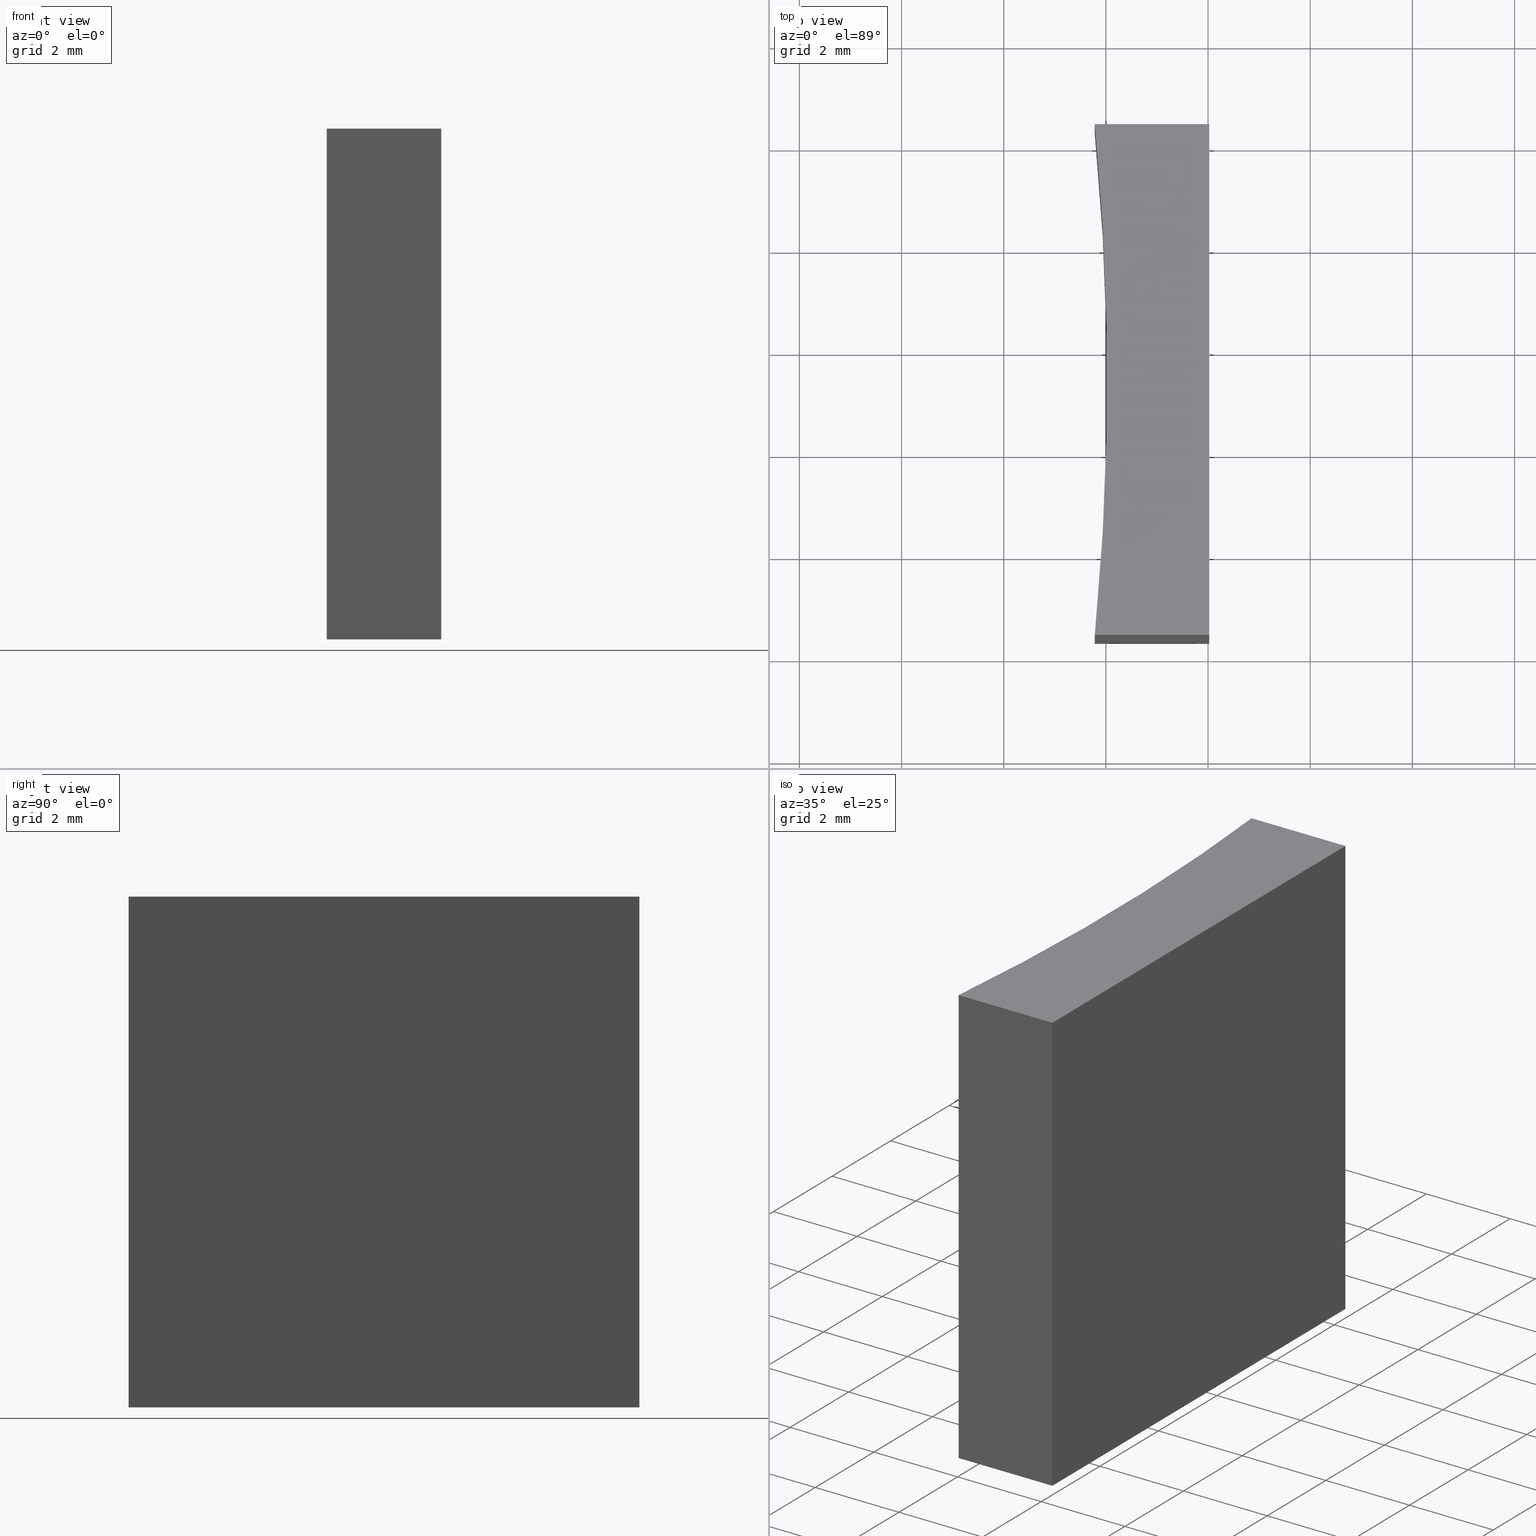
[diagram: canonical four-view strip — front | top / right | iso, engineering-drawing reading convention]
A machine part, canonical four-view strip (front | top / right | iso — engineering-drawing reading convention). The complete STEP part file that produces these views, byte-faithful:
ISO-10303-21;
HEADER;
FILE_DESCRIPTION (( 'STEP AP203' ),
    '1' );
FILE_NAME ('155568.STEP',
    '2024-05-13T05:56:05',
    ( '' ),
    ( '' ),
    'SwSTEP 2.0',
    'SolidWorks 2020',
    '' );
FILE_SCHEMA (( 'CONFIG_CONTROL_DESIGN' ));
ENDSEC;

DATA;
#1 = COORDINATED_UNIVERSAL_TIME_OFFSET ( 8, 0, .AHEAD. ) ;
#2 = VECTOR ( 'NONE', #176, 1000.000000000000000 ) ;
#3 = PERSON_AND_ORGANIZATION_ROLE ( 'creator' ) ;
#4 = CALENDAR_DATE ( 2024, 13, 5 ) ;
#5 = FACE_OUTER_BOUND ( 'NONE', #201, .T. ) ;
#6 = CARTESIAN_POINT ( 'NONE',  ( 22.02284995870106954, -9.651690268478267498, 10.00000000000000000 ) ) ;
#7 = PERSON ( 'δָ��', 'δָ��', 'δָ��', ('δָ��'), ('δָ��'), ('δָ��') ) ;
#8 = DIRECTION ( 'NONE',  ( 1.000000000000000000, 0.000000000000000000, 0.000000000000000000 ) ) ;
#9 = APPROVAL_PERSON_ORGANIZATION ( #164, #84, #161 ) ;
#10 = FACE_OUTER_BOUND ( 'NONE', #34, .T. ) ;
#11 = CARTESIAN_POINT ( 'NONE',  ( 22.02284995870107309, -19.65169026847826927, 10.00000000000000000 ) ) ;
#12 = CYLINDRICAL_SURFACE ( 'NONE', #218, 51.64000000000000057 ) ;
#13 = AXIS2_PLACEMENT_3D ( 'NONE', #172, #85, #86 ) ;
#14 = ORIENTED_EDGE ( 'NONE', *, *, #165, .F. ) ;
#15 = EDGE_CURVE ( 'NONE', #230, #133, #196, .T. ) ;
#16 = ORIENTED_EDGE ( 'NONE', *, *, #239, .F. ) ;
#17 = APPROVAL_PERSON_ORGANIZATION ( #182, #217, #220 ) ;
#18 = FACE_OUTER_BOUND ( 'NONE', #70, .T. ) ;
#19 = APPLICATION_PROTOCOL_DEFINITION ( 'international standard', 'config_control_design', 1994, #155 ) ;
#20 = CC_DESIGN_DATE_AND_TIME_ASSIGNMENT ( #75, #60, ( #149 ) ) ;
#21 = APPROVAL_DATE_TIME ( #199, #63 ) ;
#22 = LOCAL_TIME ( 13, 56, 5.000000000000000000, #1 ) ;
#23 = AXIS2_PLACEMENT_3D ( 'NONE', #191, #228, #31 ) ;
#24 = PLANE ( 'NONE',  #49 ) ;
#25 = DIRECTION ( 'NONE',  ( 0.000000000000000000, 1.000000000000000000, 0.000000000000000000 ) ) ;
#26 = ADVANCED_FACE ( 'NONE', ( #18 ), #12, .F. ) ;
#27 = VECTOR ( 'NONE', #82, 1000.000000000000000 ) ;
#28 = DIRECTION ( 'NONE',  ( -3.469446951953613696E-16, 1.000000000000000000, -0.000000000000000000 ) ) ;
#29 = CALENDAR_DATE ( 2024, 13, 5 ) ;
#30 = CC_DESIGN_SECURITY_CLASSIFICATION ( #237, ( #108 ) ) ;
#31 = DIRECTION ( 'NONE',  ( 1.000000000000000000, 0.000000000000000000, 0.000000000000000000 ) ) ;
#32 = DIRECTION ( 'NONE',  ( -0.000000000000000000, -0.000000000000000000, -1.000000000000000000 ) ) ;
#33 = CARTESIAN_POINT ( 'NONE',  ( 19.78284995870107466, -9.651690268478269275, 0.000000000000000000 ) ) ;
#34 = EDGE_LOOP ( 'NONE', ( #207, #87, #37, #210 ) ) ;
#35 = EDGE_CURVE ( 'NONE', #140, #215, #98, .T. ) ;
#36 = AXIS2_PLACEMENT_3D ( 'NONE', #169, #137, #213 ) ;
#37 = ORIENTED_EDGE ( 'NONE', *, *, #39, .F. ) ;
#38 = CARTESIAN_POINT ( 'NONE',  ( 19.78284995870107466, -19.65169026847826927, 10.00000000000000000 ) ) ;
#39 = EDGE_CURVE ( 'NONE', #102, #157, #135, .T. ) ;
#40 = ORIENTED_EDGE ( 'NONE', *, *, #99, .T. ) ;
#41 = APPROVAL_DATE_TIME ( #76, #84 ) ;
#42 = COORDINATED_UNIVERSAL_TIME_OFFSET ( 8, 0, .AHEAD. ) ;
#43 = PRODUCT ( '155568', '155568', '', ( #141 ) ) ;
#44 = PERSON_AND_ORGANIZATION ( #7, #80 ) ;
#45 = CARTESIAN_POINT ( 'NONE',  ( 19.78284995870107466, -19.65169026847826927, 10.00000000000000000 ) ) ;
#46 = PERSON_AND_ORGANIZATION ( #7, #80 ) ;
#47 = ADVANCED_FACE ( 'NONE', ( #10 ), #71, .F. ) ;
#48 = SHAPE_DEFINITION_REPRESENTATION ( #103, #233 ) ;
#49 = AXIS2_PLACEMENT_3D ( 'NONE', #45, #25, #221 ) ;
#50 = ORIENTED_EDGE ( 'NONE', *, *, #166, .T. ) ;
#51 = LINE ( 'NONE', #64, #178 ) ;
#52 = DIRECTION ( 'NONE',  ( -1.000000000000000000, -7.744301232039333445E-16, -0.000000000000000000 ) ) ;
#53 = CARTESIAN_POINT ( 'NONE',  ( 19.78284995870107466, -9.651690268478269275, 10.00000000000000000 ) ) ;
#54 = AXIS2_PLACEMENT_3D ( 'NONE', #147, #78, #145 ) ;
#55 = DIRECTION ( 'NONE',  ( -0.000000000000000000, -0.000000000000000000, -1.000000000000000000 ) ) ;
#56 = DIRECTION ( 'NONE',  ( 1.000000000000000000, 0.000000000000000000, 0.000000000000000000 ) ) ;
#57 = ORIENTED_EDGE ( 'NONE', *, *, #15, .F. ) ;
#58 = EDGE_LOOP ( 'NONE', ( #194, #104, #14, #235 ) ) ;
#59 = EDGE_LOOP ( 'NONE', ( #50, #73, #105, #120 ) ) ;
#60 = DATE_TIME_ROLE ( 'creation_date' ) ;
#61 = CALENDAR_DATE ( 2024, 13, 5 ) ;
#62 = CC_DESIGN_DATE_AND_TIME_ASSIGNMENT ( #79, #222, ( #237 ) ) ;
#63 = APPROVAL ( #109, 'δָ��' ) ;
#64 = CARTESIAN_POINT ( 'NONE',  ( 22.02284995870106954, -9.651690268478267498, 10.00000000000000000 ) ) ;
#65 = DATE_AND_TIME ( #29, #124 ) ;
#66 = CARTESIAN_POINT ( 'NONE',  ( 19.78284995870107466, -19.65169026847826927, 10.00000000000000000 ) ) ;
#67 = APPLICATION_CONTEXT ( 'configuration controlled 3d designs of mechanical parts and assemblies' ) ;
#68 = CARTESIAN_POINT ( 'NONE',  ( 19.78284995870107466, -9.651690268478269275, 10.00000000000000000 ) ) ;
#69 = LINE ( 'NONE', #68, #156 ) ;
#70 = EDGE_LOOP ( 'NONE', ( #74, #57, #160, #190 ) ) ;
#71 = PLANE ( 'NONE',  #36 ) ;
#72 = VERTEX_POINT ( 'NONE', #117 ) ;
#73 = ORIENTED_EDGE ( 'NONE', *, *, #181, .T. ) ;
#74 = ORIENTED_EDGE ( 'NONE', *, *, #143, .T. ) ;
#75 = DATE_AND_TIME ( #61, #115 ) ;
#76 = DATE_AND_TIME ( #236, #22 ) ;
#77 =( NAMED_UNIT ( * ) SI_UNIT ( $, .STERADIAN. ) SOLID_ANGLE_UNIT ( ) );
#78 = DIRECTION ( 'NONE',  ( 0.000000000000000000, 0.000000000000000000, 1.000000000000000000 ) ) ;
#79 = DATE_AND_TIME ( #4, #88 ) ;
#80 = ORGANIZATION ( 'δָ��', 'δָ��', '' ) ;
#81 = CC_DESIGN_PERSON_AND_ORGANIZATION_ASSIGNMENT ( #148, #111, ( #237 ) ) ;
#82 = DIRECTION ( 'NONE',  ( -0.000000000000000000, -0.000000000000000000, -1.000000000000000000 ) ) ;
#83 = CARTESIAN_POINT ( 'NONE',  ( 19.78284995870107466, -19.65169026847826927, 0.000000000000000000 ) ) ;
#84 = APPROVAL ( #219, 'δָ��' ) ;
#85 = DIRECTION ( 'NONE',  ( 7.744301232039333445E-16, -1.000000000000000000, 0.000000000000000000 ) ) ;
#86 = DIRECTION ( 'NONE',  ( 1.000000000000000000, 7.744301232039333445E-16, 0.000000000000000000 ) ) ;
#87 = ORIENTED_EDGE ( 'NONE', *, *, #121, .F. ) ;
#88 = LOCAL_TIME ( 13, 56, 5.000000000000000000, #167 ) ;
#89 = PERSON_AND_ORGANIZATION_ROLE ( 'creator' ) ;
#90 = DIRECTION ( 'NONE',  ( 0.000000000000000000, 0.000000000000000000, 1.000000000000000000 ) ) ;
#91 = CC_DESIGN_APPROVAL ( #63, ( #149 ) ) ;
#92 = APPROVAL_ROLE ( '' ) ;
#93 = PERSON_AND_ORGANIZATION_ROLE ( 'design_owner' ) ;
#94 = CIRCLE ( 'NONE', #23, 51.64000000000000057 ) ;
#95 = ORIENTED_EDGE ( 'NONE', *, *, #39, .T. ) ;
#96 = PERSON_AND_ORGANIZATION_ROLE ( 'design_supplier' ) ;
#97 = CARTESIAN_POINT ( 'NONE',  ( 19.78284995870107466, -19.65169026847826927, 10.00000000000000000 ) ) ;
#98 = LINE ( 'NONE', #159, #119 ) ;
#99 = EDGE_CURVE ( 'NONE', #133, #102, #153, .T. ) ;
#100 = PLANE ( 'NONE',  #13 ) ;
#101 = CARTESIAN_POINT ( 'NONE',  ( 22.02284995870106954, -9.651690268478267498, 0.000000000000000000 ) ) ;
#102 = VERTEX_POINT ( 'NONE', #187 ) ;
#103 = PRODUCT_DEFINITION_SHAPE ( 'NONE', 'NONE',  #149 ) ;
#104 = ORIENTED_EDGE ( 'NONE', *, *, #35, .F. ) ;
#105 = ORIENTED_EDGE ( 'NONE', *, *, #239, .T. ) ;
#106 = PERSON_AND_ORGANIZATION ( #7, #80 ) ;
#107 = CC_DESIGN_PERSON_AND_ORGANIZATION_ASSIGNMENT ( #106, #3, ( #108 ) ) ;
#108 = PRODUCT_DEFINITION_FORMATION_WITH_SPECIFIED_SOURCE ( '�κ�', '', #43, .NOT_KNOWN. ) ;
#109 = APPROVAL_STATUS ( 'not_yet_approved' ) ;
#110 = VECTOR ( 'NONE', #113, 1000.000000000000000 ) ;
#111 = PERSON_AND_ORGANIZATION_ROLE ( 'classification_officer' ) ;
#112 = CC_DESIGN_APPROVAL ( #217, ( #237 ) ) ;
#113 = DIRECTION ( 'NONE',  ( 1.000000000000000000, 0.000000000000000000, 0.000000000000000000 ) ) ;
#114 = CARTESIAN_POINT ( 'NONE',  ( 22.02284995870106954, -9.651690268478267498, 0.000000000000000000 ) ) ;
#115 = LOCAL_TIME ( 13, 56, 5.000000000000000000, #42 ) ;
#116 = CARTESIAN_POINT ( 'NONE',  ( 19.78284995870107466, -19.65169026847826927, 0.000000000000000000 ) ) ;
#117 = CARTESIAN_POINT ( 'NONE',  ( 22.02284995870106954, -9.651690268478267498, 10.00000000000000000 ) ) ;
#118 = ORIENTED_EDGE ( 'NONE', *, *, #173, .T. ) ;
#119 = VECTOR ( 'NONE', #231, 1000.000000000000000 ) ;
#120 = ORIENTED_EDGE ( 'NONE', *, *, #165, .T. ) ;
#121 = EDGE_CURVE ( 'NONE', #157, #215, #206, .T. ) ;
#122 = PERSON_AND_ORGANIZATION ( #7, #80 ) ;
#123 = CARTESIAN_POINT ( 'NONE',  ( 0.000000000000000000, 0.000000000000000000, 0.000000000000000000 ) ) ;
#124 = LOCAL_TIME ( 13, 56, 5.000000000000000000, #184 ) ;
#125 = DIRECTION ( 'NONE',  ( -1.000000000000000000, -3.469446951953613696E-16, 0.000000000000000000 ) ) ;
#126 = APPROVAL_STATUS ( 'not_yet_approved' ) ;
#127 =( GEOMETRIC_REPRESENTATION_CONTEXT ( 3 ) GLOBAL_UNCERTAINTY_ASSIGNED_CONTEXT ( ( #195 ) ) GLOBAL_UNIT_ASSIGNED_CONTEXT ( ( #223, #186, #77 ) ) REPRESENTATION_CONTEXT ( 'NONE', 'WORKASPACE' ) );
#128 = PLANE ( 'NONE',  #171 ) ;
#129 = CC_DESIGN_PERSON_AND_ORGANIZATION_ASSIGNMENT ( #44, #93, ( #43 ) ) ;
#130 = VERTEX_POINT ( 'NONE', #11 ) ;
#131 = CARTESIAN_POINT ( 'NONE',  ( 19.78284995870107466, -9.651690268478269275, 0.000000000000000000 ) ) ;
#132 = VECTOR ( 'NONE', #136, 1000.000000000000000 ) ;
#133 = VERTEX_POINT ( 'NONE', #116 ) ;
#134 = FACE_OUTER_BOUND ( 'NONE', #214, .T. ) ;
#135 = LINE ( 'NONE', #114, #132 ) ;
#136 = DIRECTION ( 'NONE',  ( -3.469446951953613696E-16, 1.000000000000000000, -0.000000000000000000 ) ) ;
#137 = DIRECTION ( 'NONE',  ( 0.000000000000000000, 0.000000000000000000, 1.000000000000000000 ) ) ;
#138 = AXIS2_PLACEMENT_3D ( 'NONE', #123, #90, #197 ) ;
#139 = CARTESIAN_POINT ( 'NONE',  ( -31.61451962379798530, -14.65169026847826927, 10.00000000000000000 ) ) ;
#140 = VERTEX_POINT ( 'NONE', #53 ) ;
#141 = MECHANICAL_CONTEXT ( 'NONE', #67, 'mechanical' ) ;
#142 = CC_DESIGN_APPROVAL ( #84, ( #108 ) ) ;
#143 = EDGE_CURVE ( 'NONE', #215, #133, #94, .T. ) ;
#144 = VECTOR ( 'NONE', #225, 1000.000000000000000 ) ;
#145 = DIRECTION ( 'NONE',  ( 1.000000000000000000, 0.000000000000000000, -0.000000000000000000 ) ) ;
#146 = MANIFOLD_SOLID_BREP ( '͹̨-����1', #224 ) ;
#147 = CARTESIAN_POINT ( 'NONE',  ( -31.61451962379798530, -14.65169026847826927, 10.00000000000000000 ) ) ;
#148 = PERSON_AND_ORGANIZATION ( #7, #80 ) ;
#149 = PRODUCT_DEFINITION ( 'δ֪', '', #108, #168 ) ;
#150 = DIRECTION ( 'NONE',  ( 3.469446951953613696E-16, -1.000000000000000000, 0.000000000000000000 ) ) ;
#151 = CIRCLE ( 'NONE', #175, 51.64000000000000057 ) ;
#152 = LINE ( 'NONE', #66, #110 ) ;
#153 = LINE ( 'NONE', #83, #202 ) ;
#154 = LINE ( 'NONE', #211, #144 ) ;
#155 = APPLICATION_CONTEXT ( 'configuration controlled 3d designs of mechanical parts and assemblies' ) ;
#156 = VECTOR ( 'NONE', #226, 1000.000000000000000 ) ;
#157 = VERTEX_POINT ( 'NONE', #101 ) ;
#158 = CC_DESIGN_PERSON_AND_ORGANIZATION_ASSIGNMENT ( #46, #96, ( #108 ) ) ;
#159 = CARTESIAN_POINT ( 'NONE',  ( 19.78284995870107466, -9.651690268478269275, 10.00000000000000000 ) ) ;
#160 = ORIENTED_EDGE ( 'NONE', *, *, #166, .F. ) ;
#161 = APPROVAL_ROLE ( '' ) ;
#162 = PERSON_AND_ORGANIZATION ( #7, #80 ) ;
#163 = LOCAL_TIME ( 13, 56, 5.000000000000000000, #200 ) ;
#164 = PERSON_AND_ORGANIZATION ( #7, #80 ) ;
#165 = EDGE_CURVE ( 'NONE', #72, #140, #69, .T. ) ;
#166 = EDGE_CURVE ( 'NONE', #140, #230, #151, .T. ) ;
#167 = COORDINATED_UNIVERSAL_TIME_OFFSET ( 8, 0, .AHEAD. ) ;
#168 = DESIGN_CONTEXT ( 'detailed design', #155, 'design' ) ;
#169 = CARTESIAN_POINT ( 'NONE',  ( -31.61451962379798530, -14.65169026847826927, 0.000000000000000000 ) ) ;
#170 = FACE_OUTER_BOUND ( 'NONE', #58, .T. ) ;
#171 = AXIS2_PLACEMENT_3D ( 'NONE', #6, #125, #150 ) ;
#172 = CARTESIAN_POINT ( 'NONE',  ( 19.78284995870107466, -9.651690268478269275, 10.00000000000000000 ) ) ;
#173 = EDGE_CURVE ( 'NONE', #130, #102, #188, .T. ) ;
#174 = CARTESIAN_POINT ( 'NONE',  ( 22.02284995870107309, -19.65169026847826927, 10.00000000000000000 ) ) ;
#175 = AXIS2_PLACEMENT_3D ( 'NONE', #209, #55, #8 ) ;
#176 = DIRECTION ( 'NONE',  ( -0.000000000000000000, -0.000000000000000000, -1.000000000000000000 ) ) ;
#177 = APPLICATION_PROTOCOL_DEFINITION ( 'international standard', 'config_control_design', 1994, #67 ) ;
#178 = VECTOR ( 'NONE', #28, 1000.000000000000000 ) ;
#179 = PRODUCT_RELATED_PRODUCT_CATEGORY ( 'detail', '', ( #43 ) ) ;
#180 = SECURITY_CLASSIFICATION_LEVEL ( 'unclassified' ) ;
#181 = EDGE_CURVE ( 'NONE', #230, #130, #152, .T. ) ;
#182 = PERSON_AND_ORGANIZATION ( #7, #80 ) ;
#183 = APPROVAL_DATE_TIME ( #65, #217 ) ;
#184 = COORDINATED_UNIVERSAL_TIME_OFFSET ( 8, 0, .AHEAD. ) ;
#185 = ADVANCED_FACE ( 'NONE', ( #170 ), #100, .F. ) ;
#186 =( NAMED_UNIT ( * ) PLANE_ANGLE_UNIT ( ) SI_UNIT ( $, .RADIAN. ) );
#187 = CARTESIAN_POINT ( 'NONE',  ( 22.02284995870107309, -19.65169026847826927, 0.000000000000000000 ) ) ;
#188 = LINE ( 'NONE', #174, #27 ) ;
#189 = EDGE_CURVE ( 'NONE', #72, #157, #154, .T. ) ;
#190 = ORIENTED_EDGE ( 'NONE', *, *, #35, .T. ) ;
#191 = CARTESIAN_POINT ( 'NONE',  ( -31.61451962379798530, -14.65169026847826927, 0.000000000000000000 ) ) ;
#192 = ORIENTED_EDGE ( 'NONE', *, *, #181, .F. ) ;
#193 = VECTOR ( 'NONE', #52, 1000.000000000000000 ) ;
#194 = ORIENTED_EDGE ( 'NONE', *, *, #121, .T. ) ;
#195 = UNCERTAINTY_MEASURE_WITH_UNIT (LENGTH_MEASURE( 1.000000000000000082E-05 ), #223, 'distance_accuracy_value', 'NONE');
#196 = LINE ( 'NONE', #38, #2 ) ;
#197 = DIRECTION ( 'NONE',  ( 1.000000000000000000, 0.000000000000000000, 0.000000000000000000 ) ) ;
#198 = ORIENTED_EDGE ( 'NONE', *, *, #173, .F. ) ;
#199 = DATE_AND_TIME ( #238, #163 ) ;
#200 = COORDINATED_UNIVERSAL_TIME_OFFSET ( 8, 0, .AHEAD. ) ;
#201 = EDGE_LOOP ( 'NONE', ( #40, #198, #192, #216 ) ) ;
#202 = VECTOR ( 'NONE', #56, 1000.000000000000000 ) ;
#203 = FACE_OUTER_BOUND ( 'NONE', #59, .T. ) ;
#204 = ADVANCED_FACE ( 'NONE', ( #5 ), #24, .F. ) ;
#205 = PLANE ( 'NONE',  #54 ) ;
#206 = LINE ( 'NONE', #33, #193 ) ;
#207 = ORIENTED_EDGE ( 'NONE', *, *, #143, .F. ) ;
#208 = ADVANCED_FACE ( 'NONE', ( #134 ), #128, .F. ) ;
#209 = CARTESIAN_POINT ( 'NONE',  ( -31.61451962379798530, -14.65169026847826927, 10.00000000000000000 ) ) ;
#210 = ORIENTED_EDGE ( 'NONE', *, *, #99, .F. ) ;
#211 = CARTESIAN_POINT ( 'NONE',  ( 22.02284995870106954, -9.651690268478267498, 10.00000000000000000 ) ) ;
#212 = APPROVAL_PERSON_ORGANIZATION ( #122, #63, #92 ) ;
#213 = DIRECTION ( 'NONE',  ( 1.000000000000000000, 0.000000000000000000, -0.000000000000000000 ) ) ;
#214 = EDGE_LOOP ( 'NONE', ( #95, #232, #16, #118 ) ) ;
#215 = VERTEX_POINT ( 'NONE', #131 ) ;
#216 = ORIENTED_EDGE ( 'NONE', *, *, #15, .T. ) ;
#217 = APPROVAL ( #126, 'δָ��' ) ;
#218 = AXIS2_PLACEMENT_3D ( 'NONE', #139, #32, #229 ) ;
#219 = APPROVAL_STATUS ( 'not_yet_approved' ) ;
#220 = APPROVAL_ROLE ( '' ) ;
#221 = DIRECTION ( 'NONE',  ( 0.000000000000000000, -0.000000000000000000, 1.000000000000000000 ) ) ;
#222 = DATE_TIME_ROLE ( 'classification_date' ) ;
#223 =( LENGTH_UNIT ( ) NAMED_UNIT ( * ) SI_UNIT ( .MILLI., .METRE. ) );
#224 = CLOSED_SHELL ( 'NONE', ( #26, #204, #208, #185, #227, #47 ) ) ;
#225 = DIRECTION ( 'NONE',  ( -0.000000000000000000, -0.000000000000000000, -1.000000000000000000 ) ) ;
#226 = DIRECTION ( 'NONE',  ( -1.000000000000000000, -7.744301232039333445E-16, -0.000000000000000000 ) ) ;
#227 = ADVANCED_FACE ( 'NONE', ( #203 ), #205, .T. ) ;
#228 = DIRECTION ( 'NONE',  ( -0.000000000000000000, -0.000000000000000000, -1.000000000000000000 ) ) ;
#229 = DIRECTION ( 'NONE',  ( -1.000000000000000000, 0.000000000000000000, 0.000000000000000000 ) ) ;
#230 = VERTEX_POINT ( 'NONE', #97 ) ;
#231 = DIRECTION ( 'NONE',  ( -0.000000000000000000, -0.000000000000000000, -1.000000000000000000 ) ) ;
#232 = ORIENTED_EDGE ( 'NONE', *, *, #189, .F. ) ;
#233 = ADVANCED_BREP_SHAPE_REPRESENTATION ( '155568', ( #146, #138 ), #127 ) ;
#234 = CC_DESIGN_PERSON_AND_ORGANIZATION_ASSIGNMENT ( #162, #89, ( #149 ) ) ;
#235 = ORIENTED_EDGE ( 'NONE', *, *, #189, .T. ) ;
#236 = CALENDAR_DATE ( 2024, 13, 5 ) ;
#237 = SECURITY_CLASSIFICATION ( '', '', #180 ) ;
#238 = CALENDAR_DATE ( 2024, 13, 5 ) ;
#239 = EDGE_CURVE ( 'NONE', #130, #72, #51, .T. ) ;
ENDSEC;
END-ISO-10303-21;
